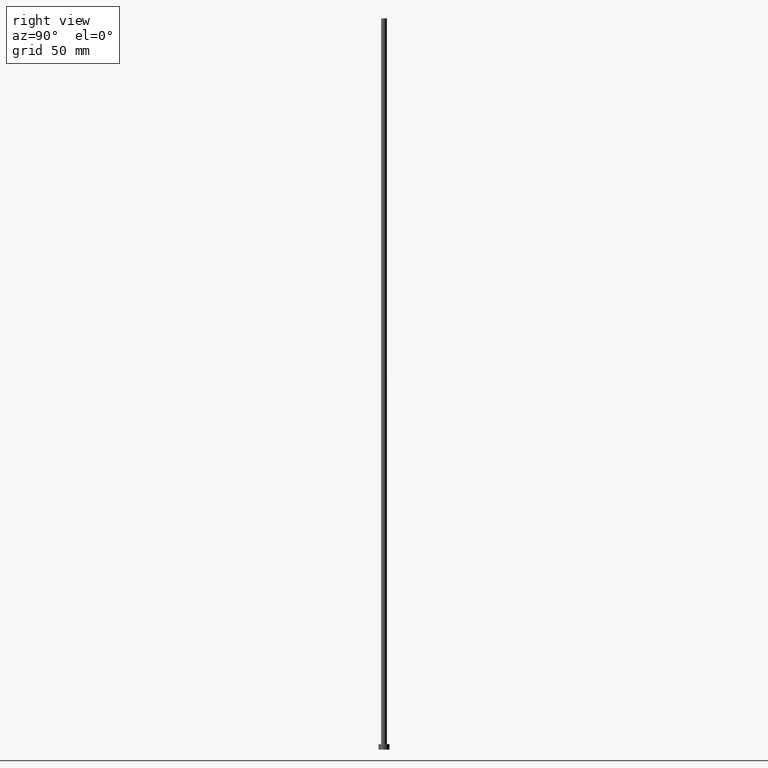
[diagram: clean part render]
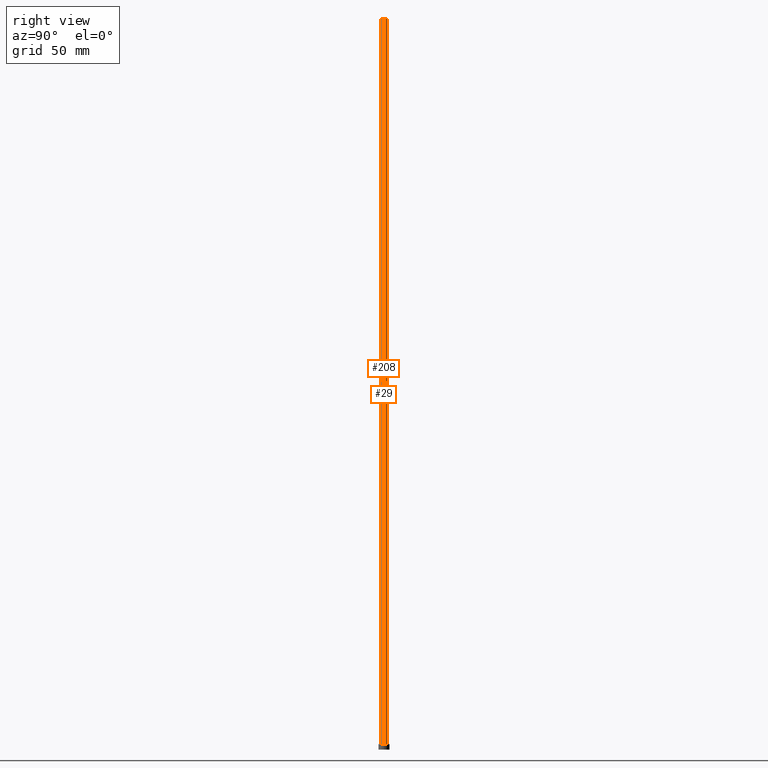
[diagram: same view with one multi-face feature highlighted, each face labeled with its STEP entity id]
A machine part, right view. The highlighted faces form ONE feature: a constant-radius fillet chain: 2 tangent blend faces with common blend radius 1.6 mm. The faces share edges in the B-rep.
Their STEP definitions:
[1] entity #208 (Cylinder):
#7 = EDGE_LOOP ( 'NONE', ( #70, #195, #51, #205 ) ) ;
#10 = EDGE_CURVE ( 'NONE', #237, #125, #223, .T. ) ;
#35 = DIRECTION ( 'NONE',  ( -0.000000000000000000, -0.000000000000000000, -1.000000000000000000 ) ) ;
#38 = EDGE_CURVE ( 'NONE', #139, #237, #71, .T. ) ;
#39 = CARTESIAN_POINT ( 'NONE',  ( -1.600000000000000089, 0.000000000000000000, 3.000000000000000000 ) ) ;
#45 = DIRECTION ( 'NONE',  ( 0.000000000000000000, 0.000000000000000000, 1.000000000000000000 ) ) ;
#46 = AXIS2_PLACEMENT_3D ( 'NONE', #222, #45, #182 ) ;
#50 = DIRECTION ( 'NONE',  ( -1.000000000000000000, 0.000000000000000000, 0.000000000000000000 ) ) ;
#51 = ORIENTED_EDGE ( 'NONE', *, *, #38, .T. ) ;
#52 = DIRECTION ( 'NONE',  ( 0.000000000000000000, 0.000000000000000000, 1.000000000000000000 ) ) ;
#55 = DIRECTION ( 'NONE',  ( -0.000000000000000000, -0.000000000000000000, -1.000000000000000000 ) ) ;
#56 = AXIS2_PLACEMENT_3D ( 'NONE', #240, #224, #50 ) ;
#63 = EDGE_CURVE ( 'NONE', #136, #125, #130, .T. ) ;
#70 = ORIENTED_EDGE ( 'NONE', *, *, #63, .F. ) ;
#71 = LINE ( 'NONE', #232, #83 ) ;
#83 = VECTOR ( 'NONE', #35, 1000.000000000000000 ) ;
#87 = CARTESIAN_POINT ( 'NONE',  ( 0.000000000000000000, 0.000000000000000000, 3.000000000000000000 ) ) ;
#100 = CARTESIAN_POINT ( 'NONE',  ( 1.600000000000000089, 1.959434878635765230E-16, 3.000000000000000000 ) ) ;
#108 = DIRECTION ( 'NONE',  ( 1.000000000000000000, 0.000000000000000000, 0.000000000000000000 ) ) ;
#110 = AXIS2_PLACEMENT_3D ( 'NONE', #87, #52, #108 ) ;
#125 = VERTEX_POINT ( 'NONE', #100 ) ;
#130 = LINE ( 'NONE', #168, #228 ) ;
#136 = VERTEX_POINT ( 'NONE', #233 ) ;
#139 = VERTEX_POINT ( 'NONE', #254 ) ;
#147 = CIRCLE ( 'NONE', #46, 1.600000000000000089 ) ;
#159 = CYLINDRICAL_SURFACE ( 'NONE', #56, 1.600000000000000089 ) ;
#168 = CARTESIAN_POINT ( 'NONE',  ( 1.600000000000000089, 1.959434878635765230E-16, 400.0000000000000000 ) ) ;
#182 = DIRECTION ( 'NONE',  ( 1.000000000000000000, 0.000000000000000000, 0.000000000000000000 ) ) ;
#195 = ORIENTED_EDGE ( 'NONE', *, *, #227, .F. ) ;
#205 = ORIENTED_EDGE ( 'NONE', *, *, #10, .T. ) ;
#208 = ADVANCED_FACE ( 'NONE', ( #242 ), #159, .T. ) ;
#222 = CARTESIAN_POINT ( 'NONE',  ( 0.000000000000000000, 0.000000000000000000, 400.0000000000000000 ) ) ;
#223 = CIRCLE ( 'NONE', #110, 1.600000000000000089 ) ;
#224 = DIRECTION ( 'NONE',  ( -0.000000000000000000, -0.000000000000000000, -1.000000000000000000 ) ) ;
#227 = EDGE_CURVE ( 'NONE', #139, #136, #147, .T. ) ;
#228 = VECTOR ( 'NONE', #55, 1000.000000000000000 ) ;
#232 = CARTESIAN_POINT ( 'NONE',  ( -1.600000000000000089, 0.000000000000000000, 400.0000000000000000 ) ) ;
#233 = CARTESIAN_POINT ( 'NONE',  ( 1.600000000000000089, 1.959434878635765230E-16, 400.0000000000000000 ) ) ;
#237 = VERTEX_POINT ( 'NONE', #39 ) ;
#240 = CARTESIAN_POINT ( 'NONE',  ( 0.000000000000000000, 0.000000000000000000, 400.0000000000000000 ) ) ;
#242 = FACE_OUTER_BOUND ( 'NONE', #7, .T. ) ;
#254 = CARTESIAN_POINT ( 'NONE',  ( -1.600000000000000089, 0.000000000000000000, 400.0000000000000000 ) ) ;
[2] entity #29 (Cylinder):
#9 = CARTESIAN_POINT ( 'NONE',  ( 0.000000000000000000, 0.000000000000000000, 3.000000000000000000 ) ) ;
#13 = CIRCLE ( 'NONE', #153, 1.600000000000000089 ) ;
#14 = AXIS2_PLACEMENT_3D ( 'NONE', #203, #24, #104 ) ;
#24 = DIRECTION ( 'NONE',  ( 0.000000000000000000, 0.000000000000000000, 1.000000000000000000 ) ) ;
#29 = ADVANCED_FACE ( 'NONE', ( #128 ), #105, .T. ) ;
#30 = ORIENTED_EDGE ( 'NONE', *, *, #38, .F. ) ;
#31 = EDGE_LOOP ( 'NONE', ( #81, #154, #155, #30 ) ) ;
#32 = DIRECTION ( 'NONE',  ( 1.000000000000000000, 0.000000000000000000, 0.000000000000000000 ) ) ;
#35 = DIRECTION ( 'NONE',  ( -0.000000000000000000, -0.000000000000000000, -1.000000000000000000 ) ) ;
#38 = EDGE_CURVE ( 'NONE', #139, #237, #71, .T. ) ;
#39 = CARTESIAN_POINT ( 'NONE',  ( -1.600000000000000089, 0.000000000000000000, 3.000000000000000000 ) ) ;
#55 = DIRECTION ( 'NONE',  ( -0.000000000000000000, -0.000000000000000000, -1.000000000000000000 ) ) ;
#63 = EDGE_CURVE ( 'NONE', #136, #125, #130, .T. ) ;
#71 = LINE ( 'NONE', #232, #83 ) ;
#81 = ORIENTED_EDGE ( 'NONE', *, *, #189, .F. ) ;
#83 = VECTOR ( 'NONE', #35, 1000.000000000000000 ) ;
#89 = DIRECTION ( 'NONE',  ( -1.000000000000000000, 0.000000000000000000, 0.000000000000000000 ) ) ;
#100 = CARTESIAN_POINT ( 'NONE',  ( 1.600000000000000089, 1.959434878635765230E-16, 3.000000000000000000 ) ) ;
#102 = AXIS2_PLACEMENT_3D ( 'NONE', #239, #186, #89 ) ;
#104 = DIRECTION ( 'NONE',  ( 1.000000000000000000, 0.000000000000000000, 0.000000000000000000 ) ) ;
#105 = CYLINDRICAL_SURFACE ( 'NONE', #102, 1.600000000000000089 ) ;
#123 = EDGE_CURVE ( 'NONE', #125, #237, #13, .T. ) ;
#125 = VERTEX_POINT ( 'NONE', #100 ) ;
#128 = FACE_OUTER_BOUND ( 'NONE', #31, .T. ) ;
#130 = LINE ( 'NONE', #168, #228 ) ;
#136 = VERTEX_POINT ( 'NONE', #233 ) ;
#139 = VERTEX_POINT ( 'NONE', #254 ) ;
#153 = AXIS2_PLACEMENT_3D ( 'NONE', #9, #229, #32 ) ;
#154 = ORIENTED_EDGE ( 'NONE', *, *, #63, .T. ) ;
#155 = ORIENTED_EDGE ( 'NONE', *, *, #123, .T. ) ;
#168 = CARTESIAN_POINT ( 'NONE',  ( 1.600000000000000089, 1.959434878635765230E-16, 400.0000000000000000 ) ) ;
#186 = DIRECTION ( 'NONE',  ( -0.000000000000000000, -0.000000000000000000, -1.000000000000000000 ) ) ;
#189 = EDGE_CURVE ( 'NONE', #136, #139, #231, .T. ) ;
#203 = CARTESIAN_POINT ( 'NONE',  ( 0.000000000000000000, 0.000000000000000000, 400.0000000000000000 ) ) ;
#228 = VECTOR ( 'NONE', #55, 1000.000000000000000 ) ;
#229 = DIRECTION ( 'NONE',  ( 0.000000000000000000, 0.000000000000000000, 1.000000000000000000 ) ) ;
#231 = CIRCLE ( 'NONE', #14, 1.600000000000000089 ) ;
#232 = CARTESIAN_POINT ( 'NONE',  ( -1.600000000000000089, 0.000000000000000000, 400.0000000000000000 ) ) ;
#233 = CARTESIAN_POINT ( 'NONE',  ( 1.600000000000000089, 1.959434878635765230E-16, 400.0000000000000000 ) ) ;
#237 = VERTEX_POINT ( 'NONE', #39 ) ;
#239 = CARTESIAN_POINT ( 'NONE',  ( 0.000000000000000000, 0.000000000000000000, 400.0000000000000000 ) ) ;
#254 = CARTESIAN_POINT ( 'NONE',  ( -1.600000000000000089, 0.000000000000000000, 400.0000000000000000 ) ) ;